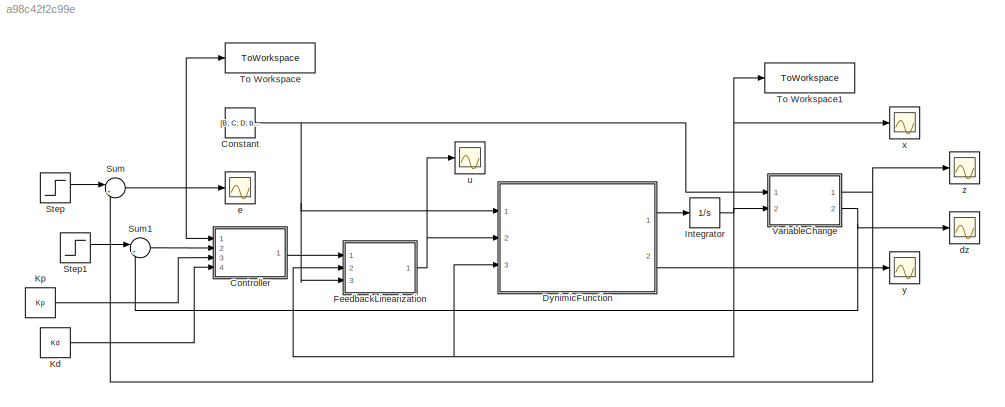
MODEL slx_a98c42f2c99e
KIND model
CONFIG AbsTol = auto
CONFIG EnableMultiTasking = off
CONFIG FixedStep = auto
CONFIG MaxStep = auto
CONFIG MinStep = auto
CONFIG RelTol = 1e-3
CONFIG SampleTimeConstraint = Unconstrained
CONFIG Solver = ode23t
CONFIG SolverName = ode23t
CONFIG StartTime = 0.0
CONFIG StopTime = 25
BLOCK [Constant] Constant
  Value = [B; C; D; b1; b2; l; gravity]
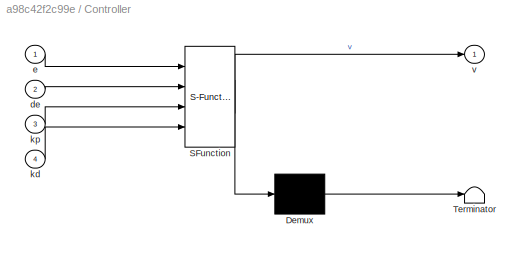
BLOCK [SubSystem] Controller
  ErrorFcn = Stateflow.Translate.translate
  PermitHierarchicalResolution = ExplicitOnly
  Ports = [4, 1]
  RequestExecContextInheritance = off
  SFBlockType = MATLAB Function
  TreatAsAtomicUnit = on
BLOCK [Demux] Controller/ Demux 
  Outputs = 1
  Ports = [1, 1]
BLOCK [S-Function] Controller/ SFunction 
  EnableBusSupport = on
  FunctionName = sf_sfun
  PortCounts = [4 2]
  Ports = [4, 2]
  SFcnIsStateOwnerBlock = off
  SFunctionDeploymentMode = off
  Tag = Stateflow S-Function 4
BLOCK [Terminator] Controller/ Terminator 
BLOCK [Inport] Controller/de
  IconDisplay = Port number
  Port = 2
BLOCK [Inport] Controller/e
  IconDisplay = Port number
BLOCK [Inport] Controller/kd
  IconDisplay = Port number
  Port = 4
BLOCK [Inport] Controller/kp
  IconDisplay = Port number
  Port = 3
BLOCK [Outport] Controller/v
  IconDisplay = Port number
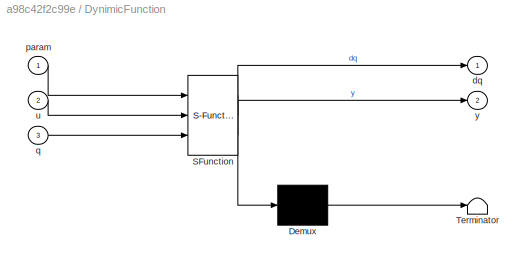
BLOCK [SubSystem] DynimicFunction
  ErrorFcn = Stateflow.Translate.translate
  PermitHierarchicalResolution = ExplicitOnly
  Ports = [3, 2]
  RequestExecContextInheritance = off
  SFBlockType = MATLAB Function
  TreatAsAtomicUnit = on
BLOCK [Demux] DynimicFunction/ Demux 
  Outputs = 1
  Ports = [1, 1]
BLOCK [S-Function] DynimicFunction/ SFunction 
  EnableBusSupport = on
  FunctionName = sf_sfun
  PortCounts = [3 3]
  Ports = [3, 3]
  SFcnIsStateOwnerBlock = off
  SFunctionDeploymentMode = off
  Tag = Stateflow S-Function 2
BLOCK [Terminator] DynimicFunction/ Terminator 
BLOCK [Outport] DynimicFunction/dq
  IconDisplay = Port number
BLOCK [Inport] DynimicFunction/param
  IconDisplay = Port number
BLOCK [Inport] DynimicFunction/q
  IconDisplay = Port number
  Port = 3
BLOCK [Inport] DynimicFunction/u
  IconDisplay = Port number
  Port = 2
BLOCK [Outport] DynimicFunction/y
  IconDisplay = Port number
  Port = 2
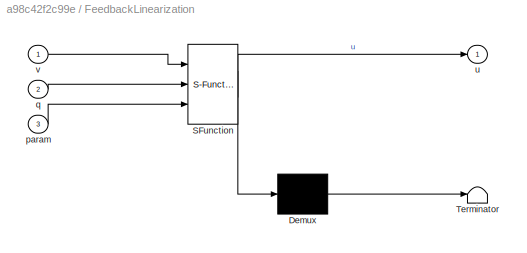
BLOCK [SubSystem] FeedbackLinearization
  ErrorFcn = Stateflow.Translate.translate
  PermitHierarchicalResolution = ExplicitOnly
  Ports = [3, 1]
  RequestExecContextInheritance = off
  SFBlockType = MATLAB Function
  TreatAsAtomicUnit = on
BLOCK [Demux] FeedbackLinearization/ Demux 
  Outputs = 1
  Ports = [1, 1]
BLOCK [S-Function] FeedbackLinearization/ SFunction 
  EnableBusSupport = on
  FunctionName = sf_sfun
  PortCounts = [3 2]
  Ports = [3, 2]
  SFcnIsStateOwnerBlock = off
  SFunctionDeploymentMode = off
  Tag = Stateflow S-Function 1
BLOCK [Terminator] FeedbackLinearization/ Terminator 
BLOCK [Inport] FeedbackLinearization/param
  IconDisplay = Port number
  Port = 3
BLOCK [Inport] FeedbackLinearization/q
  IconDisplay = Port number
  Port = 2
BLOCK [Outport] FeedbackLinearization/u
  IconDisplay = Port number
BLOCK [Inport] FeedbackLinearization/v
  IconDisplay = Port number
BLOCK [Integrator] Integrator
  InitialCondition = q0
  Ports = [1, 1]
BLOCK [Constant] Kd
  Value = Kd
BLOCK [Constant] Kp
  Value = Kp
BLOCK [Step] Step
  After = [3,0,0,0]'
  SampleTime = 0
BLOCK [Step] Step1
  After = [0,0,0,0]'
  SampleTime = 0
BLOCK [Sum] Sum
  IconShape = round
  InputSameDT = off
  Inputs = |+-
  OutDataTypeStr = Inherit: Inherit via internal rule
  Ports = [2, 1]
  SaturateOnIntegerOverflow = off
BLOCK [Sum] Sum1
  IconShape = round
  InputSameDT = off
  Inputs = |+-
  OutDataTypeStr = Inherit: Inherit via internal rule
  Ports = [2, 1]
  SaturateOnIntegerOverflow = off
BLOCK [ToWorkspace] To Workspace
  FixptAsFi = on
  MaxDataPoints = inf
  Ports = [1]
  SampleTime = -1
  SaveFormat = Timeseries
  VariableName = simout
BLOCK [ToWorkspace] To Workspace1
  FixptAsFi = on
  MaxDataPoints = inf
  Ports = [1]
  SampleTime = -1
  SaveFormat = Timeseries
  VariableName = simout1
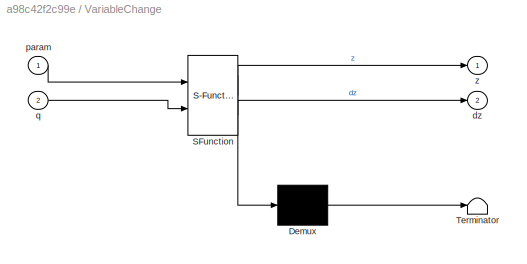
BLOCK [SubSystem] VariableChange
  ErrorFcn = Stateflow.Translate.translate
  PermitHierarchicalResolution = ExplicitOnly
  Ports = [2, 2]
  RequestExecContextInheritance = off
  SFBlockType = MATLAB Function
  TreatAsAtomicUnit = on
BLOCK [Demux] VariableChange/ Demux 
  Outputs = 1
  Ports = [1, 1]
BLOCK [S-Function] VariableChange/ SFunction 
  EnableBusSupport = on
  FunctionName = sf_sfun
  PortCounts = [2 3]
  Ports = [2, 3]
  SFcnIsStateOwnerBlock = off
  SFunctionDeploymentMode = off
  Tag = Stateflow S-Function 3
BLOCK [Terminator] VariableChange/ Terminator 
BLOCK [Outport] VariableChange/dz
  IconDisplay = Port number
  Port = 2
BLOCK [Inport] VariableChange/param
  IconDisplay = Port number
BLOCK [Inport] VariableChange/q
  IconDisplay = Port number
  Port = 2
BLOCK [Outport] VariableChange/z
  IconDisplay = Port number
BLOCK [Scope] dz
  Floating = off
  NumInputPorts = 1
  Ports = [1]
  ScopeSpecificationString = Simulink.scopes.TimeScopeBlockCfg('CurrentConfiguration', extmgr.ConfigurationSet(extmgr.Configuration('Core','General UI',true),extmgr.Configuration('Core','Source UI',true),extmgr.Configuration('Sources','WiredSimulink',true,'DataLoggingVariableName','ScopeData1'),extmgr.Configuration('Visuals','Time Domain',true),extmgr.Configuration('Tools','Plot Navigation',true),extmgr.Configuration('Tools',...<+58ch>
BLOCK [Scope] e
  Floating = off
  NumInputPorts = 1
  Ports = [1]
  ScopeSpecificationString = Simulink.scopes.TimeScopeBlockCfg('CurrentConfiguration', extmgr.ConfigurationSet(extmgr.Configuration('Core','General UI',true),extmgr.Configuration('Core','Source UI',true),extmgr.Configuration('Sources','WiredSimulink',true,'DataLoggingVariableName','ScopeData3'),extmgr.Configuration('Visuals','Time Domain',true,'SerializedDisplays',{struct('MinYLimReal','-4.45183','MaxYLimReal','5.80975','YLab...<+1429ch>
BLOCK [Scope] u
  Floating = off
  NumInputPorts = 1
  Ports = [1]
  ScopeSpecificationString = Simulink.scopes.TimeScopeBlockCfg('CurrentConfiguration', extmgr.ConfigurationSet(extmgr.Configuration('Core','General UI',true),extmgr.Configuration('Core','Source UI',true),extmgr.Configuration('Sources','WiredSimulink',true,'DataLoggingVariableName','ScopeData1'),extmgr.Configuration('Visuals','Time Domain',true,'SerializedDisplays',{struct('MinYLimReal','-0.0007','MaxYLimReal','0.00175','YLabe...<+1434ch>
BLOCK [Scope] x
  Floating = off
  NumInputPorts = 1
  Ports = [1]
  ScopeSpecificationString = Simulink.scopes.TimeScopeBlockCfg('CurrentConfiguration', extmgr.ConfigurationSet(extmgr.Configuration('Core','General UI',true),extmgr.Configuration('Core','Source UI',true),extmgr.Configuration('Sources','WiredSimulink',true,'DataLoggingVariableName','ScopeData6'),extmgr.Configuration('Visuals','Time Domain',true,'SerializedDisplays',{struct('MinYLimReal','-5.80975','MaxYLimReal','4.45183','YLab...<+1512ch>
BLOCK [Scope] y
  Floating = off
  NumInputPorts = 1
  Ports = [1]
  ScopeSpecificationString = Simulink.scopes.TimeScopeBlockCfg('CurrentConfiguration', extmgr.ConfigurationSet(extmgr.Configuration('Core','General UI',true),extmgr.Configuration('Core','Source UI',true),extmgr.Configuration('Sources','WiredSimulink',true,'DataLoggingVariableName','ScopeData1'),extmgr.Configuration('Visuals','Time Domain',true),extmgr.Configuration('Tools','Plot Navigation',true),extmgr.Configuration('Tools',...<+40ch>
BLOCK [Scope] z
  Floating = off
  NumInputPorts = 1
  Ports = [1]
  ScopeSpecificationString = Simulink.scopes.TimeScopeBlockCfg('CurrentConfiguration', extmgr.ConfigurationSet(extmgr.Configuration('Core','General UI',true),extmgr.Configuration('Core','Source UI',true),extmgr.Configuration('Sources','WiredSimulink',true,'DataLoggingVariableName','ScopeData2'),extmgr.Configuration('Visuals','Time Domain',true),extmgr.Configuration('Tools','Plot Navigation',true),extmgr.Configuration('Tools',...<+58ch>
NET Constant:1 -> DynimicFunction:1, FeedbackLinearization:3, VariableChange:1
LINE Controller:1 -> FeedbackLinearization:1
LINE DynimicFunction:1 -> Integrator:1
LINE DynimicFunction:2 -> y:1
NET FeedbackLinearization:1 -> DynimicFunction:2, u:1
NET Integrator:1 -> DynimicFunction:3, FeedbackLinearization:2, To Workspace1:1, VariableChange:2, x:1
LINE Kd:1 -> Controller:4
LINE Kp:1 -> Controller:3
LINE Step1:1 -> Sum1:1
LINE Step:1 -> Sum:1
LINE Sum1:1 -> Controller:2
NET Sum:1 -> Controller:1, To Workspace:1, e:1
NET VariableChange:1 -> Sum:2, z:1
NET VariableChange:2 -> Sum1:2, dz:1
note: NET lines group one-source signal fan-out (src -> all destinations, sorted); 1:1 wires keep LINE
CHART FeedbackLinearization states=1 transitions=1
  STATE_LABEL 'eML_blk_kernel()'
  STATE_LABEL 'SCRIPT:\nfunction u = FeedbackLinearization(v, q, param)\n\nB = param(1);\nC = param(2);\nD = param(3);\nb1 = param(4);\nb2 = param(5);\nl = param(6);\ngravity = param(7);\n\nu = (v - Lf2h_fun(B,C,D,b1,b2,gravity,l,q)) / LgLfh_fun(B,C,D,l,q);\n\nend'
CHART DynimicFunction states=1 transitions=1
  STATE_LABEL 'eML_blk_kernel()'
  STATE_LABEL 'SCRIPT:\nfunction [dq, y] = DynamicFunction(param, u, q)\n\nB = param(1);\nC = param(2);\nD = param(3);\nb1 = param(4);\nb2 = param(5);\nl = param(6);\ngravity = param(7);\n\ndq = f_fun(B,C,D,b1,b2,gravity,l,q) + g_fun(B,C,D,l,q)*u;\ny = h_fun(l,q);\n\nend'
CHART VariableChange states=1 transitions=1
  STATE_LABEL 'eML_blk_kernel()'
  STATE_LABEL 'SCRIPT:\nfunction [z, dz] = VariableChange(param, q)\n\nz = zeros(4,1);\ndz = zeros(4,1);\n\nB = param(1);\nC = param(2);\nD = param(3);\nb1 = param(4);\nb2 = param(5);\nl = param(6);\ngravity = param(7);\n\nz(1) = h_fun(l,q);\nz(2) = Lfh_fun(l,q);\nz(3) = q(1);\nz(4) = (-1/(l*cos(q(1))*B))*q(2) + q(4);\n\ndz(1) = z(2);\ndz(2) = Lf2h + LgLfh*F;\ndz(3) = dq(1);\ndz(4) = jacobian(z(4),q)*dq;\n\nend\n'
CHART Controller states=1 transitions=1
  STATE_LABEL 'eML_blk_kernel()'
  STATE_LABEL 'SCRIPT:\nfunction v = Controller(e,de,kp,kd)\n\nv = kp * e + kd * de;\n\nend\n'
